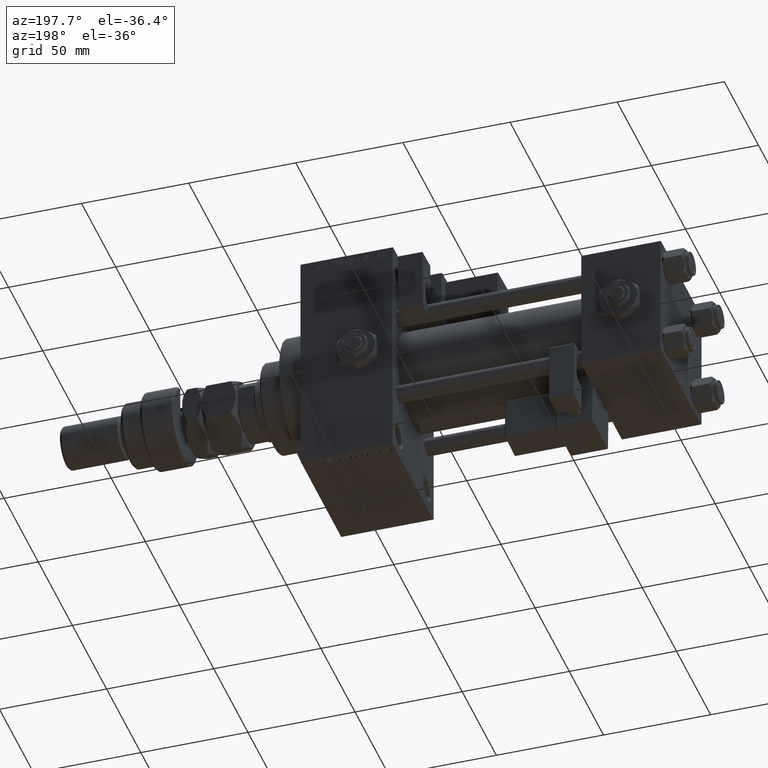
[diagram: clean part render]
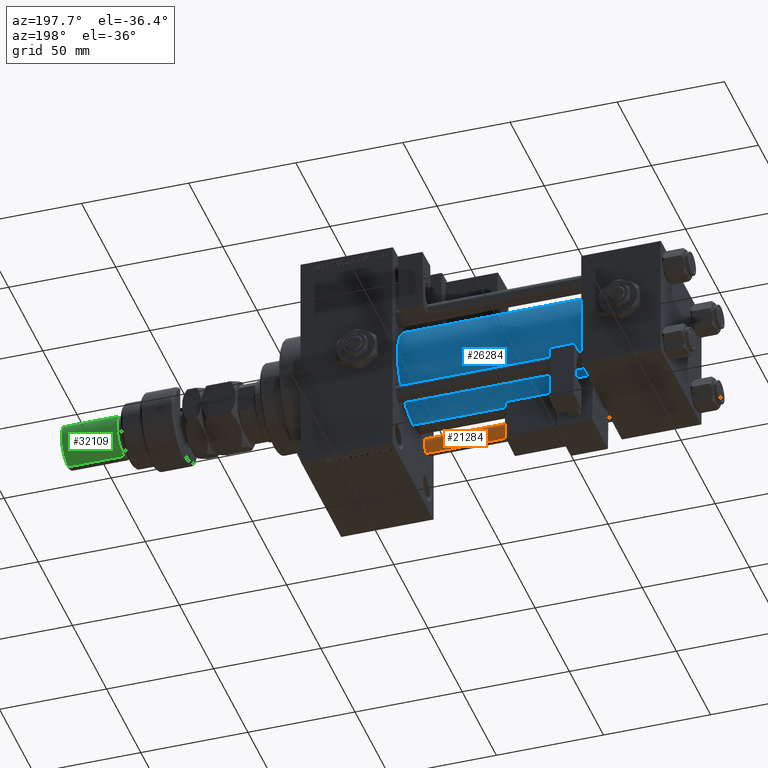
[diagram: same view with three faces highlighted in distinct colors, each labeled with its STEP entity id]
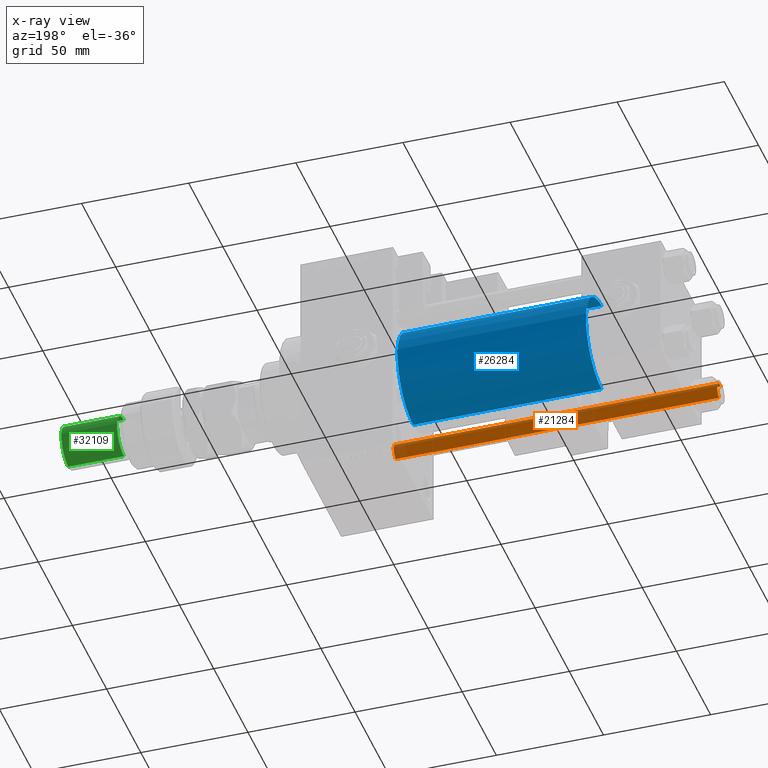
[diagram: x-ray of the same camera — body ghosted, the three highlighted faces saturated]
A machine part, auxiliary view with three faces highlighted in distinct colors.
The next image is the same camera in x-ray (body ghosted, the three faces saturated) — at least one of them is partly hidden behind the body in this view.
Their STEP definitions:

[orange] entity #21284 — the highlighted cylindrical surface (edge-blend (fillet) strip) has radius 4 mm, axis along (-1, 0, 0).
#512 = DIRECTION ( 'NONE',  ( -1.000000000000000000, 0.000000000000000000, 0.000000000000000000 ) ) ;
#575 = DIRECTION ( 'NONE',  ( 1.000000000000000000, 0.000000000000000000, 0.000000000000000000 ) ) ;
#2334 = AXIS2_PLACEMENT_3D ( 'NONE', #25650, #46664, #512 ) ;
#3099 = AXIS2_PLACEMENT_3D ( 'NONE', #46097, #33129, #49962 ) ;
#3471 = VERTEX_POINT ( 'NONE', #27934 ) ;
#5189 = CYLINDRICAL_SURFACE ( 'NONE', #2334, 4.000000000000000000 ) ;
#5222 = ORIENTED_EDGE ( 'NONE', *, *, #6399, .T. ) ;
#5732 = CIRCLE ( 'NONE', #3099, 4.000000000000000000 ) ;
#6399 = EDGE_CURVE ( 'NONE', #46687, #11544, #34837, .T. ) ;
#7141 = EDGE_CURVE ( 'NONE', #46687, #51512, #23585, .T. ) ;
#7273 = EDGE_CURVE ( 'NONE', #3471, #51512, #5732, .T. ) ;
#9112 = LINE ( 'NONE', #43846, #30737 ) ;
#10155 = VECTOR ( 'NONE', #49555, 1000.000000000000000 ) ;
#11544 = VERTEX_POINT ( 'NONE', #39057 ) ;
#12985 = DIRECTION ( 'NONE',  ( -0.000000000000000000, -0.000000000000000000, -1.000000000000000000 ) ) ;
#13188 = ORIENTED_EDGE ( 'NONE', *, *, #7273, .T. ) ;
#17933 = DIRECTION ( 'NONE',  ( 0.000000000000000000, 0.000000000000000000, -1.000000000000000000 ) ) ;
#19802 = AXIS2_PLACEMENT_3D ( 'NONE', #21818, #17933, #575 ) ;
#21284 = ADVANCED_FACE ( 'NONE', ( #51329 ), #5189, .T. ) ;
#21818 = CARTESIAN_POINT ( 'NONE',  ( 0.000000000000000000, 0.000000000000000000, 151.5000000000000284 ) ) ;
#23337 = ORIENTED_EDGE ( 'NONE', *, *, #7141, .F. ) ;
#23585 = LINE ( 'NONE', #24690, #10155 ) ;
#24084 = CARTESIAN_POINT ( 'NONE',  ( 4.000000000000000000, 4.898587196589412829E-16, 151.5000000000000284 ) ) ;
#24690 = CARTESIAN_POINT ( 'NONE',  ( 4.000000000000000000, 4.898587196589412829E-16, 152.0000000000000000 ) ) ;
#25650 = CARTESIAN_POINT ( 'NONE',  ( 0.000000000000000000, 0.000000000000000000, 152.0000000000000000 ) ) ;
#27867 = EDGE_CURVE ( 'NONE', #11544, #3471, #9112, .T. ) ;
#27934 = CARTESIAN_POINT ( 'NONE',  ( -4.000000000000000000, 0.000000000000000000, 0.5000000000000281997 ) ) ;
#28558 = ORIENTED_EDGE ( 'NONE', *, *, #27867, .T. ) ;
#30737 = VECTOR ( 'NONE', #12985, 1000.000000000000000 ) ;
#33129 = DIRECTION ( 'NONE',  ( -0.000000000000000000, -0.000000000000000000, 1.000000000000000000 ) ) ;
#34837 = CIRCLE ( 'NONE', #19802, 4.000000000000000000 ) ;
#39057 = CARTESIAN_POINT ( 'NONE',  ( -4.000000000000000000, 0.000000000000000000, 151.5000000000000284 ) ) ;
#43846 = CARTESIAN_POINT ( 'NONE',  ( -4.000000000000000000, 0.000000000000000000, 152.0000000000000000 ) ) ;
#44158 = CARTESIAN_POINT ( 'NONE',  ( 4.000000000000000000, 4.898587196589412829E-16, 0.5000000000000281997 ) ) ;
#46097 = CARTESIAN_POINT ( 'NONE',  ( 0.000000000000000000, 0.000000000000000000, 0.5000000000000281997 ) ) ;
#46664 = DIRECTION ( 'NONE',  ( -0.000000000000000000, -0.000000000000000000, -1.000000000000000000 ) ) ;
#46687 = VERTEX_POINT ( 'NONE', #24084 ) ;
#49555 = DIRECTION ( 'NONE',  ( -0.000000000000000000, -0.000000000000000000, -1.000000000000000000 ) ) ;
#49962 = DIRECTION ( 'NONE',  ( 1.000000000000000000, 0.000000000000000000, 0.000000000000000000 ) ) ;
#51329 = FACE_OUTER_BOUND ( 'NONE', #53442, .T. ) ;
#51512 = VERTEX_POINT ( 'NONE', #44158 ) ;
#53442 = EDGE_LOOP ( 'NONE', ( #23337, #5222, #28558, #13188 ) ) ;

[blue] entity #26284 — the highlighted cylindrical surface (partial cylindrical patch) has radius 23 mm, axis along (-1, -0, -0).
#2357 = CARTESIAN_POINT ( 'NONE',  ( 37.00000000000000711, 2.146024240737016609E-16, -23.00000000000000000 ) ) ;
#2906 = FACE_OUTER_BOUND ( 'NONE', #8019, .T. ) ;
#3650 = DIRECTION ( 'NONE',  ( 0.000000000000000000, 0.000000000000000000, 1.000000000000000000 ) ) ;
#4466 = CARTESIAN_POINT ( 'NONE',  ( 37.00000000000000711, -2.602085213965210642E-15, 0.000000000000000000 ) ) ;
#8019 = EDGE_LOOP ( 'NONE', ( #47758, #51764, #48842, #36770 ) ) ;
#10302 = CARTESIAN_POINT ( 'NONE',  ( 125.0000000000000000, 2.146024240737016609E-16, -23.00000000000000000 ) ) ;
#12294 = CARTESIAN_POINT ( 'NONE',  ( 125.0000000000000000, -2.602085213965210642E-15, 23.00000000000000000 ) ) ;
#16057 = EDGE_CURVE ( 'NONE', #22607, #53858, #24089, .T. ) ;
#16331 = CARTESIAN_POINT ( 'NONE',  ( 37.00000000000000711, -2.602085213965210642E-15, 23.00000000000000000 ) ) ;
#19747 = DIRECTION ( 'NONE',  ( 0.000000000000000000, 0.000000000000000000, 1.000000000000000000 ) ) ;
#22203 = VERTEX_POINT ( 'NONE', #38646 ) ;
#22607 = VERTEX_POINT ( 'NONE', #2357 ) ;
#23075 = CARTESIAN_POINT ( 'NONE',  ( 125.0000000000000000, -2.602085213965210642E-15, 0.000000000000000000 ) ) ;
#23346 = CYLINDRICAL_SURFACE ( 'NONE', #46588, 23.00000000000000000 ) ;
#24089 = CIRCLE ( 'NONE', #31167, 23.00000000000000000 ) ;
#24735 = DIRECTION ( 'NONE',  ( -1.000000000000000000, -0.000000000000000000, -0.000000000000000000 ) ) ;
#26284 = ADVANCED_FACE ( 'NONE', ( #2906 ), #23346, .T. ) ;
#27419 = VECTOR ( 'NONE', #24735, 1000.000000000000000 ) ;
#28907 = DIRECTION ( 'NONE',  ( 0.000000000000000000, 0.000000000000000000, -1.000000000000000000 ) ) ;
#29253 = CIRCLE ( 'NONE', #31900, 23.00000000000000000 ) ;
#29341 = DIRECTION ( 'NONE',  ( 1.000000000000000000, -0.000000000000000000, 0.000000000000000000 ) ) ;
#31167 = AXIS2_PLACEMENT_3D ( 'NONE', #4466, #29341, #3650 ) ;
#31503 = CARTESIAN_POINT ( 'NONE',  ( 125.0000000000000000, -2.602085213965210642E-15, 23.00000000000000000 ) ) ;
#31900 = AXIS2_PLACEMENT_3D ( 'NONE', #50161, #45208, #28907 ) ;
#35113 = EDGE_CURVE ( 'NONE', #46131, #53858, #41592, .T. ) ;
#36770 = ORIENTED_EDGE ( 'NONE', *, *, #35113, .F. ) ;
#37288 = EDGE_CURVE ( 'NONE', #22203, #46131, #29253, .T. ) ;
#38646 = CARTESIAN_POINT ( 'NONE',  ( 125.0000000000000000, 2.146024240737016609E-16, -23.00000000000000000 ) ) ;
#40386 = VECTOR ( 'NONE', #40687, 1000.000000000000000 ) ;
#40499 = DIRECTION ( 'NONE',  ( -1.000000000000000000, -0.000000000000000000, -0.000000000000000000 ) ) ;
#40687 = DIRECTION ( 'NONE',  ( -1.000000000000000000, -0.000000000000000000, -0.000000000000000000 ) ) ;
#41592 = LINE ( 'NONE', #12294, #27419 ) ;
#45208 = DIRECTION ( 'NONE',  ( 1.000000000000000000, 0.000000000000000000, 0.000000000000000000 ) ) ;
#46131 = VERTEX_POINT ( 'NONE', #31503 ) ;
#46588 = AXIS2_PLACEMENT_3D ( 'NONE', #23075, #40499, #19747 ) ;
#47758 = ORIENTED_EDGE ( 'NONE', *, *, #37288, .F. ) ;
#48842 = ORIENTED_EDGE ( 'NONE', *, *, #16057, .T. ) ;
#50161 = CARTESIAN_POINT ( 'NONE',  ( 125.0000000000000000, -2.602085213965210642E-15, 0.000000000000000000 ) ) ;
#50998 = EDGE_CURVE ( 'NONE', #22203, #22607, #53376, .T. ) ;
#51764 = ORIENTED_EDGE ( 'NONE', *, *, #50998, .T. ) ;
#53376 = LINE ( 'NONE', #10302, #40386 ) ;
#53858 = VERTEX_POINT ( 'NONE', #16331 ) ;

[green] entity #32109 — the highlighted cylindrical surface (edge-blend (fillet) strip) has radius 10 mm, axis along (-1, -0, 0).
#1154 = CIRCLE ( 'NONE', #21405, 10.00000000000000000 ) ;
#8796 = DIRECTION ( 'NONE',  ( -0.000000000000000000, -0.000000000000000000, -1.000000000000000000 ) ) ;
#9947 = VERTEX_POINT ( 'NONE', #17448 ) ;
#10054 = ORIENTED_EDGE ( 'NONE', *, *, #13616, .T. ) ;
#11782 = DIRECTION ( 'NONE',  ( -0.000000000000000000, -0.000000000000000000, -1.000000000000000000 ) ) ;
#12576 = CIRCLE ( 'NONE', #28448, 10.00000000000000000 ) ;
#13616 = EDGE_CURVE ( 'NONE', #25123, #49124, #12576, .T. ) ;
#13959 = DIRECTION ( 'NONE',  ( -0.000000000000000000, -0.000000000000000000, 1.000000000000000000 ) ) ;
#14731 = EDGE_CURVE ( 'NONE', #24231, #9947, #1154, .T. ) ;
#14960 = CARTESIAN_POINT ( 'NONE',  ( 10.00000000000000000, 1.224646799147353256E-15, 54.99999999999998579 ) ) ;
#15023 = CARTESIAN_POINT ( 'NONE',  ( 0.000000000000000000, 0.000000000000000000, 56.00000000000000711 ) ) ;
#16042 = LINE ( 'NONE', #19920, #38532 ) ;
#17448 = CARTESIAN_POINT ( 'NONE',  ( -10.00000000000000000, 0.000000000000000000, 29.00000000000000711 ) ) ;
#19920 = CARTESIAN_POINT ( 'NONE',  ( 10.00000000000000000, 1.224646799147353256E-15, 56.00000000000000711 ) ) ;
#20413 = ORIENTED_EDGE ( 'NONE', *, *, #14731, .T. ) ;
#21405 = AXIS2_PLACEMENT_3D ( 'NONE', #46871, #13959, #38575 ) ;
#23443 = CARTESIAN_POINT ( 'NONE',  ( -10.00000000000000000, 0.000000000000000000, 54.99999999999998579 ) ) ;
#23840 = AXIS2_PLACEMENT_3D ( 'NONE', #15023, #8796, #31358 ) ;
#24231 = VERTEX_POINT ( 'NONE', #29855 ) ;
#25123 = VERTEX_POINT ( 'NONE', #23443 ) ;
#28448 = AXIS2_PLACEMENT_3D ( 'NONE', #30742, #47596, #43705 ) ;
#29855 = CARTESIAN_POINT ( 'NONE',  ( 10.00000000000000000, 1.224646799147353256E-15, 29.00000000000000711 ) ) ;
#30077 = CYLINDRICAL_SURFACE ( 'NONE', #23840, 10.00000000000000000 ) ;
#30742 = CARTESIAN_POINT ( 'NONE',  ( 0.000000000000000000, 0.000000000000000000, 54.99999999999998579 ) ) ;
#31188 = ORIENTED_EDGE ( 'NONE', *, *, #49139, .T. ) ;
#31358 = DIRECTION ( 'NONE',  ( -1.000000000000000000, 0.000000000000000000, 0.000000000000000000 ) ) ;
#32109 = ADVANCED_FACE ( 'NONE', ( #52892 ), #30077, .T. ) ;
#32249 = LINE ( 'NONE', #45494, #51879 ) ;
#38532 = VECTOR ( 'NONE', #40937, 1000.000000000000000 ) ;
#38575 = DIRECTION ( 'NONE',  ( 1.000000000000000000, 0.000000000000000000, 0.000000000000000000 ) ) ;
#40937 = DIRECTION ( 'NONE',  ( -0.000000000000000000, -0.000000000000000000, -1.000000000000000000 ) ) ;
#43705 = DIRECTION ( 'NONE',  ( 1.000000000000000000, 0.000000000000000000, 0.000000000000000000 ) ) ;
#45494 = CARTESIAN_POINT ( 'NONE',  ( -10.00000000000000000, 0.000000000000000000, 56.00000000000000711 ) ) ;
#46871 = CARTESIAN_POINT ( 'NONE',  ( 0.000000000000000000, 0.000000000000000000, 29.00000000000000711 ) ) ;
#47596 = DIRECTION ( 'NONE',  ( 0.000000000000000000, 0.000000000000000000, -1.000000000000000000 ) ) ;
#49092 = ORIENTED_EDGE ( 'NONE', *, *, #52048, .F. ) ;
#49124 = VERTEX_POINT ( 'NONE', #14960 ) ;
#49139 = EDGE_CURVE ( 'NONE', #49124, #24231, #16042, .T. ) ;
#50919 = EDGE_LOOP ( 'NONE', ( #10054, #31188, #20413, #49092 ) ) ;
#51879 = VECTOR ( 'NONE', #11782, 1000.000000000000000 ) ;
#52048 = EDGE_CURVE ( 'NONE', #25123, #9947, #32249, .T. ) ;
#52892 = FACE_OUTER_BOUND ( 'NONE', #50919, .T. ) ;